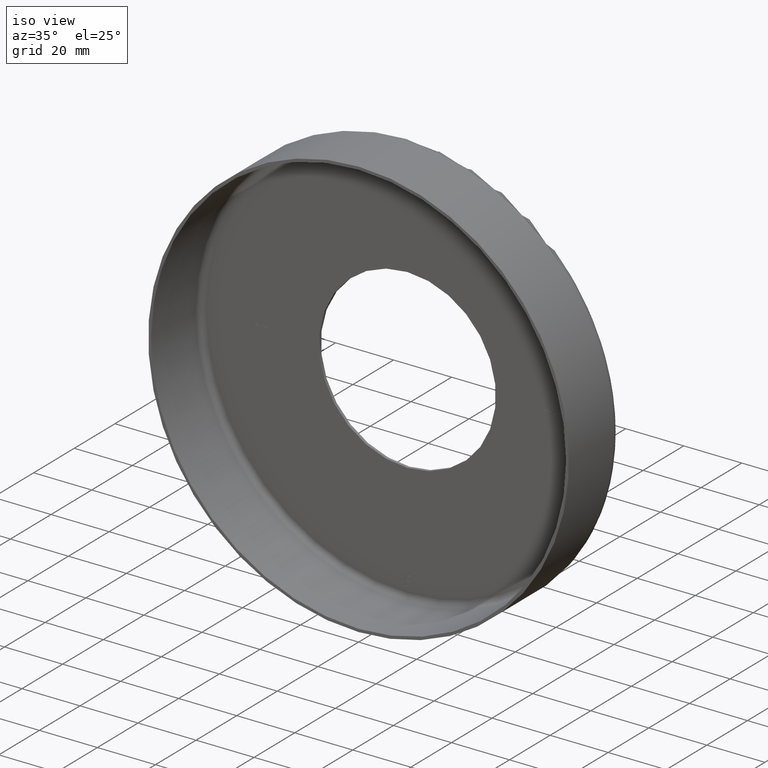
[diagram: clean part render]
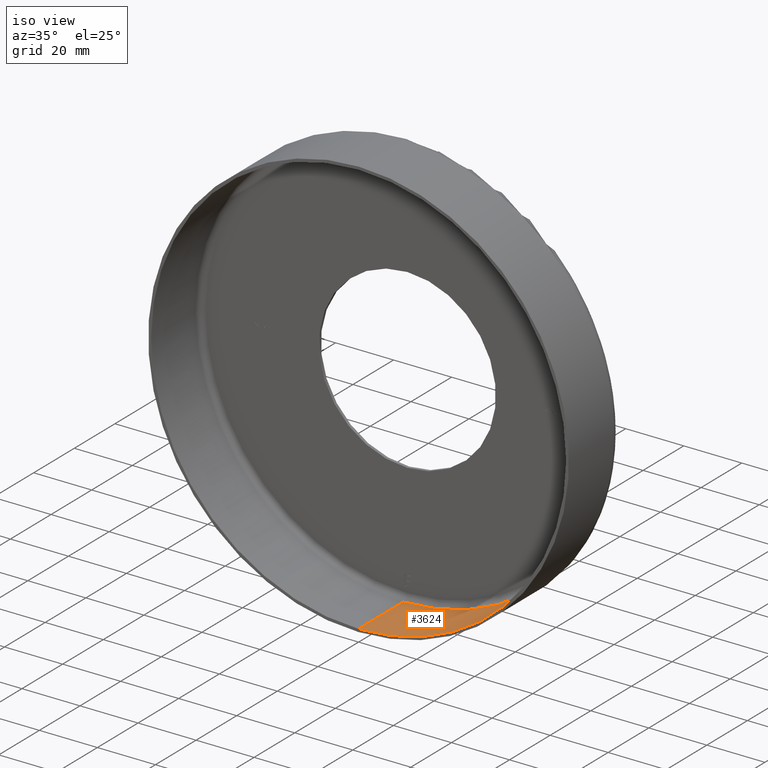
[diagram: same view with one face highlighted and labeled with its STEP entity id]
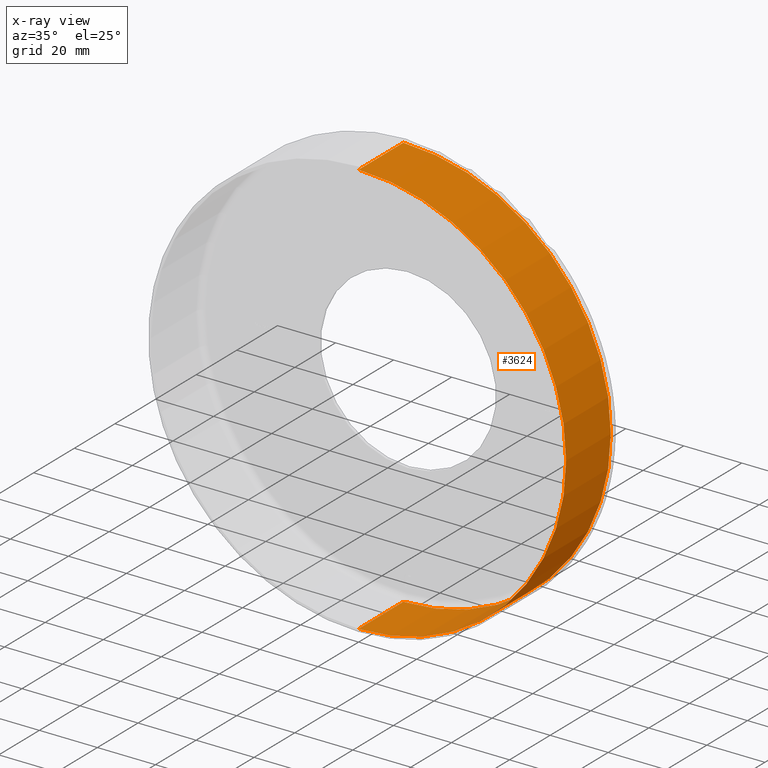
[diagram: x-ray of the same camera — body ghosted, the highlighted face saturated]
A machine part, iso view. The second image highlights one B-rep face of the part: STEP entity #3624.
The next image is the same camera in x-ray: the body ghosted, the highlighted face saturated — about 0% of this face is hidden behind the body in this view.
In plain terms, the highlighted cylindrical surface (partial cylindrical patch) has radius 71.5 mm, axis along (-0, -1, -0).
Its self-contained STEP definition (entity closure, byte-faithful):
#264 = ORIENTED_EDGE ( 'NONE', *, *, #1520, .F. ) ;
#367 = CARTESIAN_POINT ( 'NONE',  ( 0.000000000000000000, 22.00000000000000355, 0.000000000000000000 ) ) ;
#532 = CIRCLE ( 'NONE', #13622, 71.50000000000000000 ) ;
#1148 = ORIENTED_EDGE ( 'NONE', *, *, #10093, .T. ) ;
#1263 = CARTESIAN_POINT ( 'NONE',  ( 0.000000000000000000, 0.000000000000000000, 0.000000000000000000 ) ) ;
#1472 = VERTEX_POINT ( 'NONE', #15076 ) ;
#1520 = EDGE_CURVE ( 'NONE', #6275, #1472, #11798, .T. ) ;
#1685 = DIRECTION ( 'NONE',  ( 0.000000000000000000, 0.000000000000000000, -1.000000000000000000 ) ) ;
#1797 = CARTESIAN_POINT ( 'NONE',  ( 8.756224613903574137E-15, 0.000000000000000000, 71.50000000000000000 ) ) ;
#3102 = DIRECTION ( 'NONE',  ( -0.000000000000000000, -1.000000000000000000, -0.000000000000000000 ) ) ;
#3624 = ADVANCED_FACE ( 'NONE', ( #11206 ), #10824, .F. ) ;
#3860 = CARTESIAN_POINT ( 'NONE',  ( 8.756224613903574137E-15, -1.224646799147353207E-16, 71.50000000000000000 ) ) ;
#4045 = LINE ( 'NONE', #13978, #5967 ) ;
#5136 = DIRECTION ( 'NONE',  ( -0.000000000000000000, -1.000000000000000000, -0.000000000000000000 ) ) ;
#5338 = EDGE_CURVE ( 'NONE', #1472, #7325, #10997, .T. ) ;
#5367 = VECTOR ( 'NONE', #10424, 1000.000000000000000 ) ;
#5518 = CARTESIAN_POINT ( 'NONE',  ( 0.000000000000000000, -1.224646799147353207E-16, -71.50000000000000000 ) ) ;
#5967 = VECTOR ( 'NONE', #3102, 1000.000000000000000 ) ;
#6275 = VERTEX_POINT ( 'NONE', #15649 ) ;
#6406 = EDGE_CURVE ( 'NONE', #10891, #7325, #532, .T. ) ;
#6742 = EDGE_LOOP ( 'NONE', ( #9085, #264, #1148, #13604 ) ) ;
#7325 = VERTEX_POINT ( 'NONE', #3860 ) ;
#9085 = ORIENTED_EDGE ( 'NONE', *, *, #5338, .F. ) ;
#10093 = EDGE_CURVE ( 'NONE', #6275, #10891, #4045, .T. ) ;
#10424 = DIRECTION ( 'NONE',  ( -0.000000000000000000, -1.000000000000000000, -0.000000000000000000 ) ) ;
#10824 = CYLINDRICAL_SURFACE ( 'NONE', #14018, 71.50000000000000000 ) ;
#10891 = VERTEX_POINT ( 'NONE', #5518 ) ;
#10997 = LINE ( 'NONE', #1797, #5367 ) ;
#11206 = FACE_OUTER_BOUND ( 'NONE', #6742, .T. ) ;
#11567 = DIRECTION ( 'NONE',  ( -0.000000000000000000, -1.000000000000000000, -0.000000000000000000 ) ) ;
#11798 = CIRCLE ( 'NONE', #12147, 71.50000000000000000 ) ;
#12147 = AXIS2_PLACEMENT_3D ( 'NONE', #367, #11567, #1685 ) ;
#12345 = DIRECTION ( 'NONE',  ( -0.000000000000000000, -1.000000000000000000, -0.000000000000000000 ) ) ;
#13433 = CARTESIAN_POINT ( 'NONE',  ( 0.000000000000000000, -1.224646799147353207E-16, 0.000000000000000000 ) ) ;
#13595 = DIRECTION ( 'NONE',  ( 0.000000000000000000, 0.000000000000000000, -1.000000000000000000 ) ) ;
#13604 = ORIENTED_EDGE ( 'NONE', *, *, #6406, .T. ) ;
#13622 = AXIS2_PLACEMENT_3D ( 'NONE', #13433, #12345, #13595 ) ;
#13978 = CARTESIAN_POINT ( 'NONE',  ( 0.000000000000000000, 0.000000000000000000, -71.50000000000000000 ) ) ;
#14018 = AXIS2_PLACEMENT_3D ( 'NONE', #1263, #5136, #14929 ) ;
#14929 = DIRECTION ( 'NONE',  ( 0.000000000000000000, 0.000000000000000000, -1.000000000000000000 ) ) ;
#15076 = CARTESIAN_POINT ( 'NONE',  ( 8.756224613903574137E-15, 22.00000000000000355, 71.50000000000000000 ) ) ;
#15649 = CARTESIAN_POINT ( 'NONE',  ( 0.000000000000000000, 22.00000000000000355, -71.50000000000000000 ) ) ;